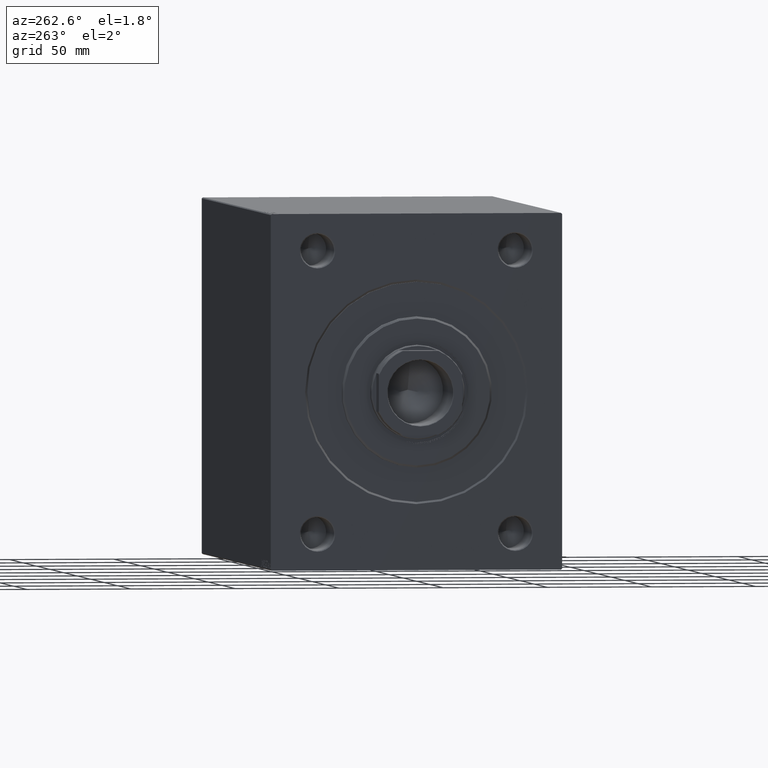
[diagram: clean part render]
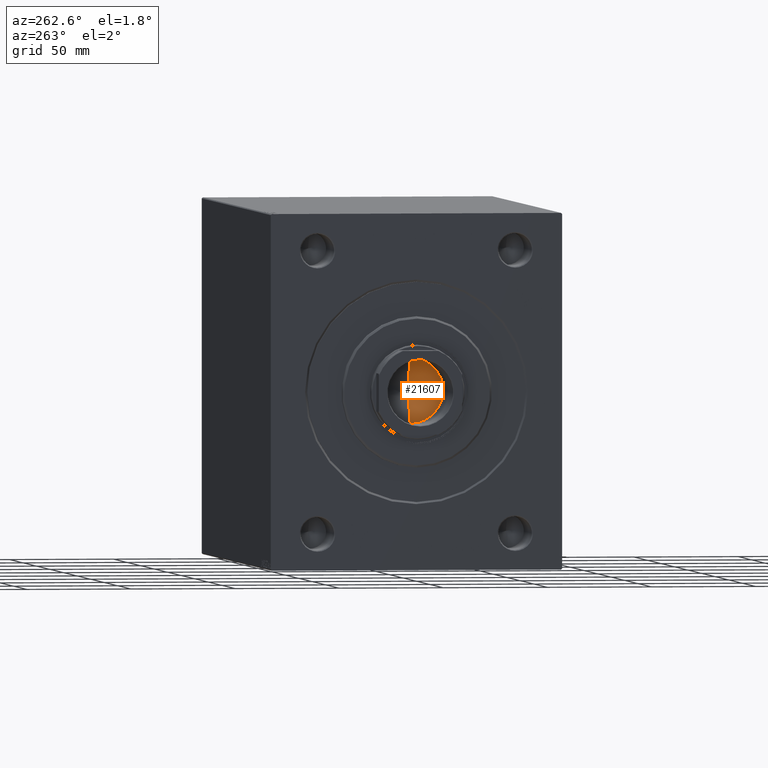
[diagram: same view with one face highlighted and labeled with its STEP entity id]
A machine part, auxiliary view. The second image highlights one B-rep face of the part: STEP entity #21607.
In plain terms, the highlighted conical surface has half-angle 59 deg.
Its self-contained STEP definition (entity closure, byte-faithful):
#1282 = VERTEX_POINT ( 'NONE', #9737 ) ;
#2436 = DIRECTION ( 'NONE',  ( 1.000000000000000000, 0.000000000000000000, 0.000000000000000000 ) ) ;
#2548 = ORIENTED_EDGE ( 'NONE', *, *, #29202, .F. ) ;
#3026 = DIRECTION ( 'NONE',  ( -0.000000000000000000, -0.000000000000000000, 1.000000000000000000 ) ) ;
#3129 = CARTESIAN_POINT ( 'NONE',  ( -15.74999999999999289, 1.928818708657080556E-15, 206.0000000000000284 ) ) ;
#5138 = EDGE_CURVE ( 'NONE', #1282, #21065, #16153, .T. ) ;
#5583 = FACE_OUTER_BOUND ( 'NONE', #26408, .T. ) ;
#6460 = DIRECTION ( 'NONE',  ( -0.000000000000000000, -0.000000000000000000, 1.000000000000000000 ) ) ;
#8799 = ORIENTED_EDGE ( 'NONE', *, *, #5138, .T. ) ;
#9574 = AXIS2_PLACEMENT_3D ( 'NONE', #40553, #3026, #16714 ) ;
#9737 = CARTESIAN_POINT ( 'NONE',  ( -1.199718644317817648E-14, 0.000000000000000000, 196.5364452503159498 ) ) ;
#11012 = VECTOR ( 'NONE', #37924, 1000.000000000000000 ) ;
#11239 = VECTOR ( 'NONE', #29656, 1000.000000000000000 ) ;
#16153 = LINE ( 'NONE', #3129, #11239 ) ;
#16714 = DIRECTION ( 'NONE',  ( 1.000000000000000000, 0.000000000000000000, 0.000000000000000000 ) ) ;
#17245 = CARTESIAN_POINT ( 'NONE',  ( 15.74999999999999289, 0.000000000000000000, 206.0000000000000284 ) ) ;
#18736 = AXIS2_PLACEMENT_3D ( 'NONE', #39954, #6460, #2436 ) ;
#21065 = VERTEX_POINT ( 'NONE', #24449 ) ;
#21607 = ADVANCED_FACE ( 'NONE', ( #5583 ), #35985, .F. ) ;
#24449 = CARTESIAN_POINT ( 'NONE',  ( -15.74999999999999289, 1.928818708657080556E-15, 206.0000000000000284 ) ) ;
#26188 = CARTESIAN_POINT ( 'NONE',  ( 15.74999999999999289, 0.000000000000000000, 206.0000000000000284 ) ) ;
#26330 = ORIENTED_EDGE ( 'NONE', *, *, #28545, .T. ) ;
#26408 = EDGE_LOOP ( 'NONE', ( #2548, #8799, #26330 ) ) ;
#28243 = CIRCLE ( 'NONE', #9574, 15.74999999999999289 ) ;
#28545 = EDGE_CURVE ( 'NONE', #21065, #34601, #28243, .T. ) ;
#29202 = EDGE_CURVE ( 'NONE', #1282, #34601, #37494, .T. ) ;
#29656 = DIRECTION ( 'NONE',  ( -0.8571673007021120005, 1.049727191138618326E-16, 0.5150380749100547106 ) ) ;
#34601 = VERTEX_POINT ( 'NONE', #26188 ) ;
#35985 = CONICAL_SURFACE ( 'NONE', #18736, 15.74999999999999289, 1.029744258676653867 ) ;
#37494 = LINE ( 'NONE', #17245, #11012 ) ;
#37924 = DIRECTION ( 'NONE',  ( 0.8571673007021120005, 0.000000000000000000, 0.5150380749100547106 ) ) ;
#39954 = CARTESIAN_POINT ( 'NONE',  ( 0.000000000000000000, 0.000000000000000000, 206.0000000000000284 ) ) ;
#40553 = CARTESIAN_POINT ( 'NONE',  ( 0.000000000000000000, 0.000000000000000000, 206.0000000000000284 ) ) ;